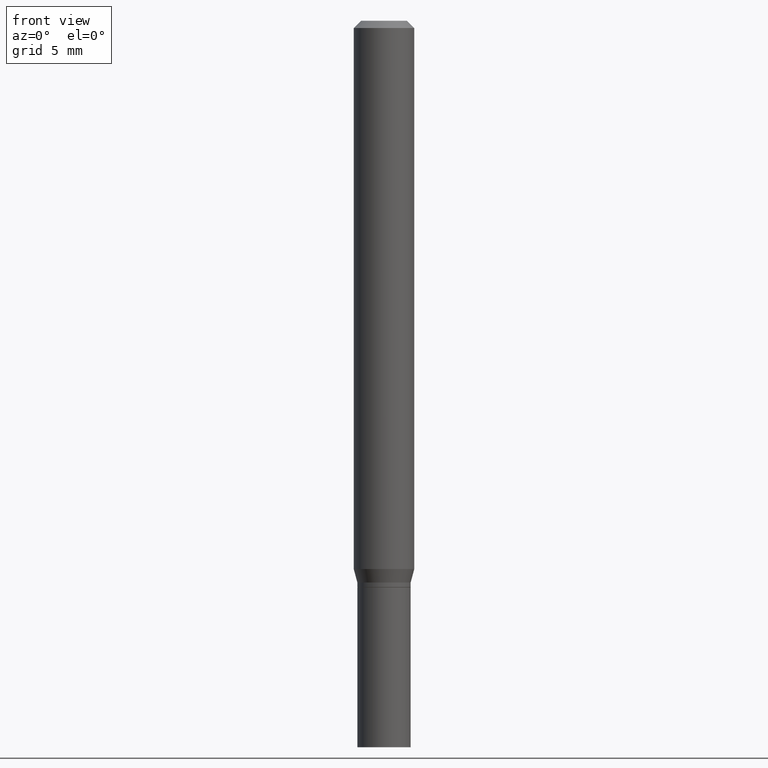
[diagram: clean part render]
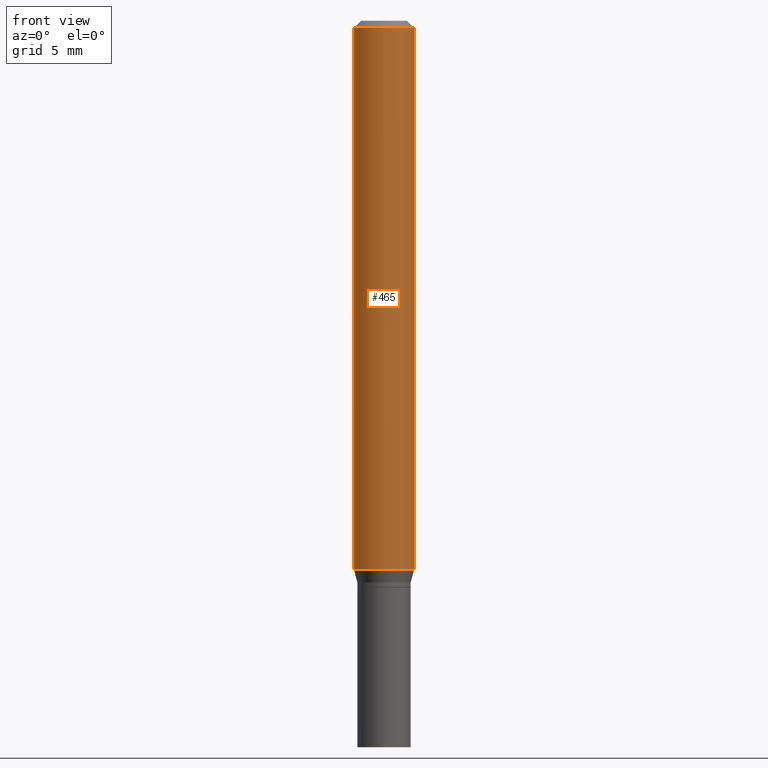
[diagram: same view with one face highlighted and labeled with its STEP entity id]
A machine part, front view. The second image highlights one B-rep face of the part: STEP entity #465.
In plain terms, the highlighted cylindrical surface (edge-blend (fillet) strip) has radius 1.5875 mm, axis along (-0, 0, 1).
Its self-contained STEP definition (entity closure, byte-faithful):
#12 = VERTEX_POINT ( 'NONE', #143 ) ;
#14 = DIRECTION ( 'NONE',  ( 1.000000000000000000, -6.982962677686262766E-15, 0.000000000000000000 ) ) ;
#19 = CARTESIAN_POINT ( 'NONE',  ( 0.000000000000000000, 0.000000000000000000, 0.000000000000000000 ) ) ;
#38 = DIRECTION ( 'NONE',  ( -2.445468806185136877E-29, 3.491481338843145188E-15, 1.000000000000000000 ) ) ;
#56 = AXIS2_PLACEMENT_3D ( 'NONE', #296, #151, #299 ) ;
#61 = VERTEX_POINT ( 'NONE', #180 ) ;
#69 = CARTESIAN_POINT ( 'NONE',  ( 0.06250000000000000000, -4.364351673553916694E-16, 3.047610484872459871E-30 ) ) ;
#78 = CARTESIAN_POINT ( 'NONE',  ( 2.768294211427200085E-29, -3.952390459931239169E-15, -1.132009618943233376 ) ) ;
#87 = DIRECTION ( 'NONE',  ( 1.000000000000000000, -6.982962677686266711E-15, 4.876176775795935793E-29 ) ) ;
#90 = LINE ( 'NONE', #340, #266 ) ;
#118 = CARTESIAN_POINT ( 'NONE',  ( 0.06250000000000000000, -4.888073874380388472E-16, -0.01499999999999999944 ) ) ;
#124 = AXIS2_PLACEMENT_3D ( 'NONE', #19, #458, #87 ) ;
#138 = EDGE_CURVE ( 'NONE', #200, #344, #361, .T. ) ;
#143 = CARTESIAN_POINT ( 'NONE',  ( -0.06250000000000000000, -3.508301250081176552E-15, -1.132009618943233376 ) ) ;
#151 = DIRECTION ( 'NONE',  ( -2.445468806185136597E-29, 3.491481338843145583E-15, 1.000000000000000000 ) ) ;
#153 = CIRCLE ( 'NONE', #211, 0.06250000000000000000 ) ;
#174 = ORIENTED_EDGE ( 'NONE', *, *, #309, .F. ) ;
#180 = CARTESIAN_POINT ( 'NONE',  ( -0.06250000000000000000, -1.558292130156880705E-15, -0.01499999999999999944 ) ) ;
#193 = CARTESIAN_POINT ( 'NONE',  ( 0.06250000000000000000, -4.388825627286631627E-15, -1.132009618943233376 ) ) ;
#195 = VECTOR ( 'NONE', #38, 39.37007874015748143 ) ;
#198 = FACE_OUTER_BOUND ( 'NONE', #235, .T. ) ;
#200 = VERTEX_POINT ( 'NONE', #193 ) ;
#211 = AXIS2_PLACEMENT_3D ( 'NONE', #78, #304, #14 ) ;
#229 = EDGE_CURVE ( 'NONE', #12, #200, #153, .T. ) ;
#235 = EDGE_LOOP ( 'NONE', ( #451, #417, #379, #174 ) ) ;
#266 = VECTOR ( 'NONE', #272, 39.37007874015748143 ) ;
#272 = DIRECTION ( 'NONE',  ( -2.445468806185136877E-29, 3.491481338843145188E-15, 1.000000000000000000 ) ) ;
#286 = CIRCLE ( 'NONE', #56, 0.06250000000000000000 ) ;
#296 = CARTESIAN_POINT ( 'NONE',  ( 3.668203209277705088E-31, -5.237222008264718399E-17, -0.01499999999999999944 ) ) ;
#299 = DIRECTION ( 'NONE',  ( 1.000000000000000000, -6.982962677686266711E-15, 0.000000000000000000 ) ) ;
#304 = DIRECTION ( 'NONE',  ( -2.445468806185136597E-29, 3.491481338843145583E-15, 1.000000000000000000 ) ) ;
#309 = EDGE_CURVE ( 'NONE', #61, #344, #286, .T. ) ;
#314 = CYLINDRICAL_SURFACE ( 'NONE', #124, 0.06250000000000000000 ) ;
#340 = CARTESIAN_POINT ( 'NONE',  ( -0.06250000000000000000, 4.440892098500626162E-16, -3.074334431409316114E-30 ) ) ;
#344 = VERTEX_POINT ( 'NONE', #118 ) ;
#361 = LINE ( 'NONE', #69, #195 ) ;
#373 = EDGE_CURVE ( 'NONE', #12, #61, #90, .T. ) ;
#379 = ORIENTED_EDGE ( 'NONE', *, *, #138, .T. ) ;
#417 = ORIENTED_EDGE ( 'NONE', *, *, #229, .T. ) ;
#451 = ORIENTED_EDGE ( 'NONE', *, *, #373, .F. ) ;
#458 = DIRECTION ( 'NONE',  ( -2.445468806185136597E-29, 3.491481338843145583E-15, 1.000000000000000000 ) ) ;
#465 = ADVANCED_FACE ( 'NONE', ( #198 ), #314, .T. ) ;